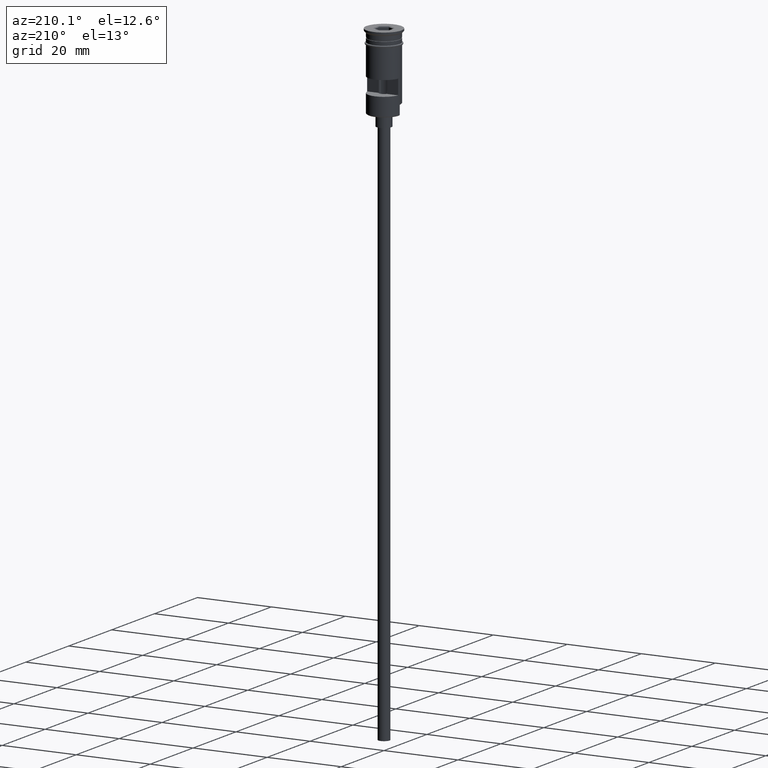
[diagram: clean part render]
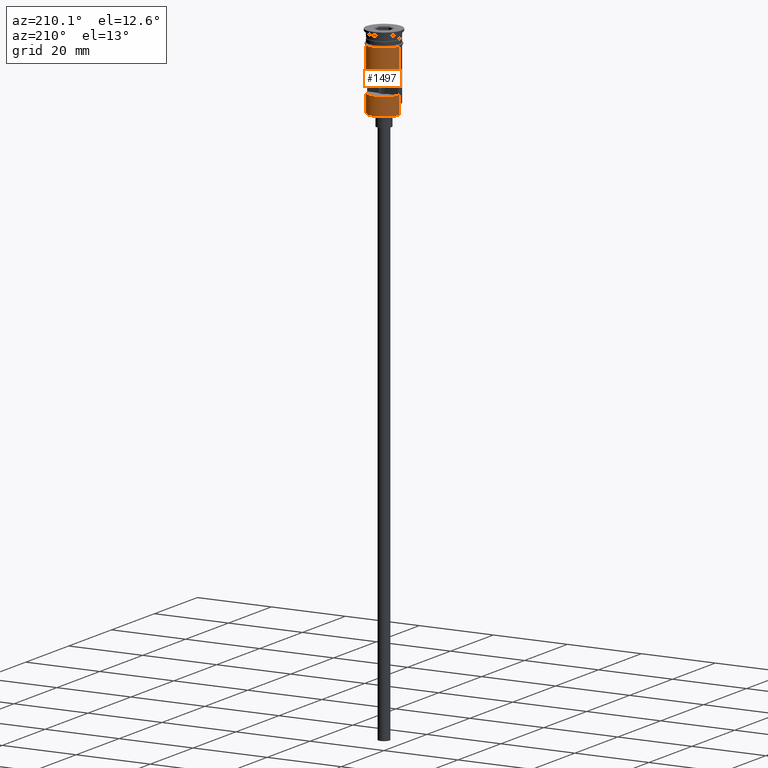
[diagram: same view with one face highlighted and labeled with its STEP entity id]
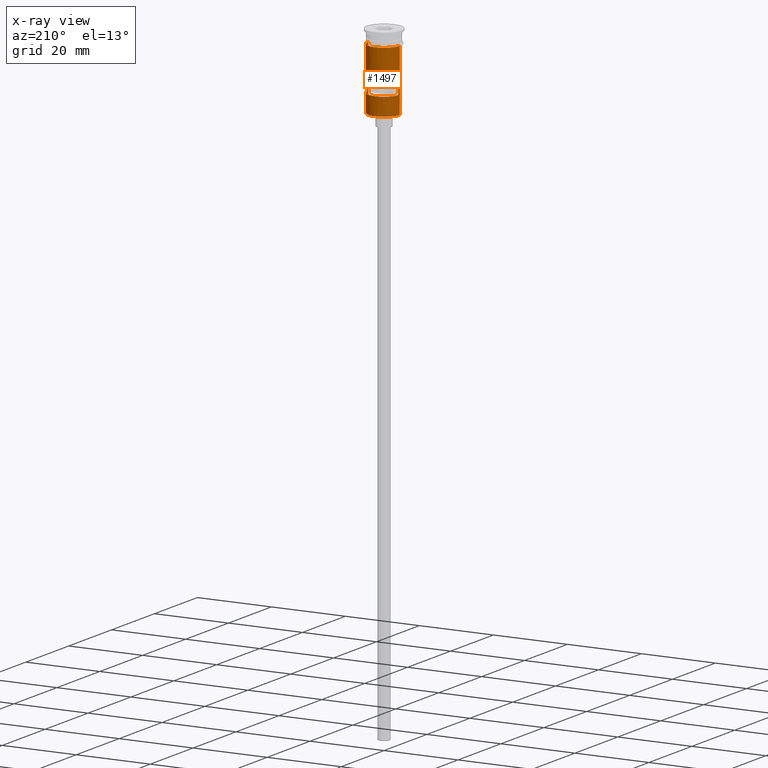
[diagram: x-ray of the same camera — body ghosted, the highlighted face saturated]
A machine part, auxiliary view. The second image highlights one B-rep face of the part: STEP entity #1497.
The next image is the same camera in x-ray: the body ghosted, the highlighted face saturated — about 0% of this face is hidden behind the body in this view.
In plain terms, the highlighted cylindrical surface (edge-blend (fillet) strip) has radius 4.25 mm, axis along (-0, -0, 1).
Its self-contained STEP definition (entity closure, byte-faithful):
#16 = CARTESIAN_POINT ( 'NONE',  ( 0.000000000000000000, 0.000000000000000000, -15.50000000000000000 ) ) ;
#85 = CARTESIAN_POINT ( 'NONE',  ( -4.207433897282282231, 0.5999999999999996447, -15.50000000000000000 ) ) ;
#104 = VERTEX_POINT ( 'NONE', #175 ) ;
#137 = CARTESIAN_POINT ( 'NONE',  ( 4.249999999999996447, 5.204748896376247741E-16, -17.80000000000000071 ) ) ;
#172 = DIRECTION ( 'NONE',  ( 0.000000000000000000, 0.000000000000000000, 1.000000000000000000 ) ) ;
#175 = CARTESIAN_POINT ( 'NONE',  ( -4.207433897282282231, 0.5999999999999996447, -11.50000000000000000 ) ) ;
#181 = LINE ( 'NONE', #990, #1152 ) ;
#189 = CARTESIAN_POINT ( 'NONE',  ( -4.207433897282282231, 0.5999999999999996447, 0.000000000000000000 ) ) ;
#221 = VECTOR ( 'NONE', #559, 1000.000000000000000 ) ;
#237 = ORIENTED_EDGE ( 'NONE', *, *, #281, .T. ) ;
#238 = VERTEX_POINT ( 'NONE', #790 ) ;
#241 = VERTEX_POINT ( 'NONE', #1186 ) ;
#246 = EDGE_CURVE ( 'NONE', #811, #241, #1057, .T. ) ;
#252 = DIRECTION ( 'NONE',  ( -0.000000000000000000, -0.000000000000000000, 1.000000000000000000 ) ) ;
#264 = DIRECTION ( 'NONE',  ( 0.000000000000000000, 0.000000000000000000, -1.000000000000000000 ) ) ;
#265 = ORIENTED_EDGE ( 'NONE', *, *, #1241, .T. ) ;
#274 = DIRECTION ( 'NONE',  ( 1.000000000000000000, 0.000000000000000000, 0.000000000000000000 ) ) ;
#281 = EDGE_CURVE ( 'NONE', #241, #1119, #1097, .T. ) ;
#302 = CARTESIAN_POINT ( 'NONE',  ( 4.249999999999994671, 5.204748896376245769E-16, -20.30000000000000426 ) ) ;
#342 = CARTESIAN_POINT ( 'NONE',  ( 4.249999999999994671, 5.204748896376245769E-16, -20.49999999999999645 ) ) ;
#347 = VERTEX_POINT ( 'NONE', #137 ) ;
#421 = CARTESIAN_POINT ( 'NONE',  ( -4.249999999999994671, 0.000000000000000000, -20.30000000000000426 ) ) ;
#426 = FACE_BOUND ( 'NONE', #657, .T. ) ;
#531 = CYLINDRICAL_SURFACE ( 'NONE', #626, 4.249999999999996447 ) ;
#540 = EDGE_CURVE ( 'NONE', #1265, #1145, #181, .T. ) ;
#542 = ORIENTED_EDGE ( 'NONE', *, *, #1528, .F. ) ;
#546 = CARTESIAN_POINT ( 'NONE',  ( -4.249999999999999112, 5.204748896376250699E-16, -3.799999999999998934 ) ) ;
#559 = DIRECTION ( 'NONE',  ( -0.000000000000000000, -0.000000000000000000, 1.000000000000000000 ) ) ;
#602 = VECTOR ( 'NONE', #982, 1000.000000000000000 ) ;
#607 = ORIENTED_EDGE ( 'NONE', *, *, #1341, .F. ) ;
#608 = CARTESIAN_POINT ( 'NONE',  ( -4.249999999999996447, 5.204748896376247741E-16, 0.000000000000000000 ) ) ;
#626 = AXIS2_PLACEMENT_3D ( 'NONE', #930, #1134, #1272 ) ;
#657 = EDGE_LOOP ( 'NONE', ( #1399, #776, #1542, #542 ) ) ;
#680 = DIRECTION ( 'NONE',  ( -0.000000000000000000, -0.000000000000000000, 1.000000000000000000 ) ) ;
#696 = LINE ( 'NONE', #342, #1231 ) ;
#705 = DIRECTION ( 'NONE',  ( -1.000000000000000000, 0.000000000000000000, 0.000000000000000000 ) ) ;
#745 = LINE ( 'NONE', #870, #602 ) ;
#760 = FACE_OUTER_BOUND ( 'NONE', #1560, .T. ) ;
#766 = VERTEX_POINT ( 'NONE', #85 ) ;
#772 = VERTEX_POINT ( 'NONE', #302 ) ;
#776 = ORIENTED_EDGE ( 'NONE', *, *, #1029, .F. ) ;
#790 = CARTESIAN_POINT ( 'NONE',  ( 4.249999999999999112, 0.000000000000000000, -3.799999999999998934 ) ) ;
#811 = VERTEX_POINT ( 'NONE', #421 ) ;
#829 = CARTESIAN_POINT ( 'NONE',  ( 4.207433897282282231, 0.5999999999999996447, -11.50000000000000000 ) ) ;
#837 = EDGE_CURVE ( 'NONE', #238, #1119, #1277, .T. ) ;
#870 = CARTESIAN_POINT ( 'NONE',  ( 4.249999999999996447, 0.000000000000000000, 0.000000000000000000 ) ) ;
#901 = DIRECTION ( 'NONE',  ( -1.000000000000000000, 0.000000000000000000, 0.000000000000000000 ) ) ;
#909 = CARTESIAN_POINT ( 'NONE',  ( 4.207433897282282231, 0.5999999999999996447, -15.50000000000000000 ) ) ;
#930 = CARTESIAN_POINT ( 'NONE',  ( 0.000000000000000000, 0.000000000000000000, 0.000000000000000000 ) ) ;
#934 = DIRECTION ( 'NONE',  ( -0.000000000000000000, -0.000000000000000000, 1.000000000000000000 ) ) ;
#960 = DIRECTION ( 'NONE',  ( 0.000000000000000000, 0.000000000000000000, 1.000000000000000000 ) ) ;
#982 = DIRECTION ( 'NONE',  ( -0.000000000000000000, -0.000000000000000000, 1.000000000000000000 ) ) ;
#989 = ORIENTED_EDGE ( 'NONE', *, *, #1220, .F. ) ;
#990 = CARTESIAN_POINT ( 'NONE',  ( 4.207433897282282231, 0.5999999999999996447, 0.000000000000000000 ) ) ;
#1000 = CIRCLE ( 'NONE', #1413, 4.249999999999996447 ) ;
#1029 = EDGE_CURVE ( 'NONE', #104, #1265, #1209, .T. ) ;
#1057 = LINE ( 'NONE', #1428, #1460 ) ;
#1061 = CARTESIAN_POINT ( 'NONE',  ( 0.000000000000000000, 0.000000000000000000, -3.799999999999998934 ) ) ;
#1097 = LINE ( 'NONE', #608, #1503 ) ;
#1119 = VERTEX_POINT ( 'NONE', #546 ) ;
#1134 = DIRECTION ( 'NONE',  ( -0.000000000000000000, -0.000000000000000000, 1.000000000000000000 ) ) ;
#1145 = VERTEX_POINT ( 'NONE', #909 ) ;
#1152 = VECTOR ( 'NONE', #264, 1000.000000000000000 ) ;
#1157 = AXIS2_PLACEMENT_3D ( 'NONE', #16, #172, #901 ) ;
#1185 = DIRECTION ( 'NONE',  ( -0.000000000000000000, -0.000000000000000000, 1.000000000000000000 ) ) ;
#1186 = CARTESIAN_POINT ( 'NONE',  ( -4.249999999999994671, 0.000000000000000000, -17.80000000000000071 ) ) ;
#1192 = EDGE_CURVE ( 'NONE', #766, #104, #1194, .T. ) ;
#1194 = LINE ( 'NONE', #189, #221 ) ;
#1209 = CIRCLE ( 'NONE', #1250, 4.249999999999996447 ) ;
#1220 = EDGE_CURVE ( 'NONE', #772, #347, #696, .T. ) ;
#1231 = VECTOR ( 'NONE', #1185, 1000.000000000000000 ) ;
#1241 = EDGE_CURVE ( 'NONE', #772, #811, #1000, .T. ) ;
#1243 = ORIENTED_EDGE ( 'NONE', *, *, #246, .T. ) ;
#1250 = AXIS2_PLACEMENT_3D ( 'NONE', #1266, #1288, #274 ) ;
#1265 = VERTEX_POINT ( 'NONE', #829 ) ;
#1266 = CARTESIAN_POINT ( 'NONE',  ( 0.000000000000000000, 0.000000000000000000, -11.50000000000000000 ) ) ;
#1272 = DIRECTION ( 'NONE',  ( 1.000000000000000000, 0.000000000000000000, 0.000000000000000000 ) ) ;
#1277 = CIRCLE ( 'NONE', #1409, 4.249999999999999112 ) ;
#1288 = DIRECTION ( 'NONE',  ( -0.000000000000000000, 0.000000000000000000, -1.000000000000000000 ) ) ;
#1315 = CARTESIAN_POINT ( 'NONE',  ( 0.000000000000000000, 0.000000000000000000, -20.30000000000000426 ) ) ;
#1318 = DIRECTION ( 'NONE',  ( 1.000000000000000000, 0.000000000000000000, 0.000000000000000000 ) ) ;
#1341 = EDGE_CURVE ( 'NONE', #347, #238, #745, .T. ) ;
#1388 = CIRCLE ( 'NONE', #1157, 4.249999999999996447 ) ;
#1399 = ORIENTED_EDGE ( 'NONE', *, *, #540, .F. ) ;
#1409 = AXIS2_PLACEMENT_3D ( 'NONE', #1061, #934, #1318 ) ;
#1413 = AXIS2_PLACEMENT_3D ( 'NONE', #1315, #960, #705 ) ;
#1428 = CARTESIAN_POINT ( 'NONE',  ( -4.249999999999994671, 0.000000000000000000, -20.49999999999999645 ) ) ;
#1460 = VECTOR ( 'NONE', #680, 1000.000000000000000 ) ;
#1497 = ADVANCED_FACE ( 'NONE', ( #426, #760 ), #531, .T. ) ;
#1501 = ORIENTED_EDGE ( 'NONE', *, *, #837, .F. ) ;
#1503 = VECTOR ( 'NONE', #252, 1000.000000000000000 ) ;
#1528 = EDGE_CURVE ( 'NONE', #1145, #766, #1388, .T. ) ;
#1542 = ORIENTED_EDGE ( 'NONE', *, *, #1192, .F. ) ;
#1560 = EDGE_LOOP ( 'NONE', ( #1243, #237, #1501, #607, #989, #265 ) ) ;